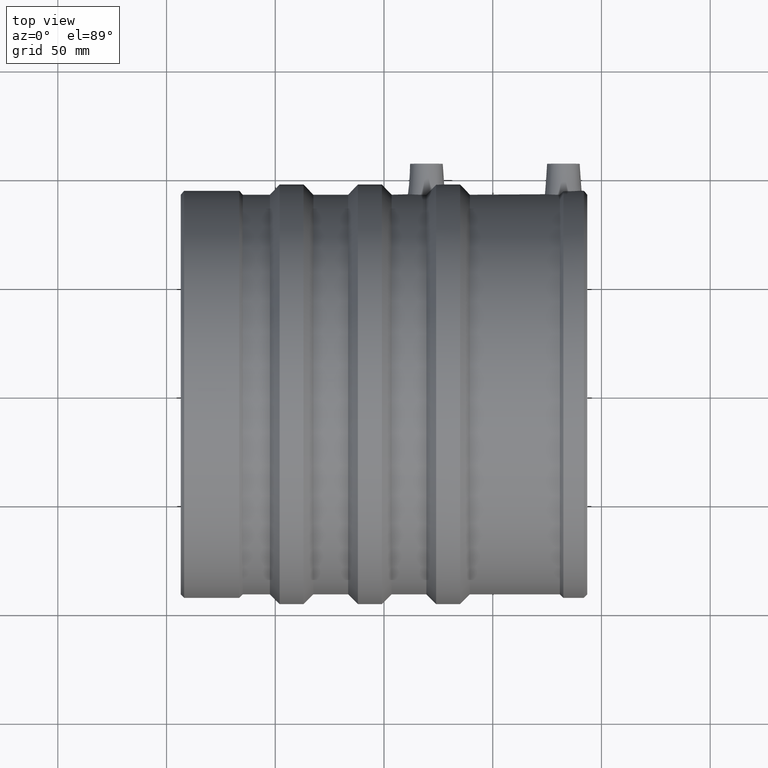
[diagram: clean part render]
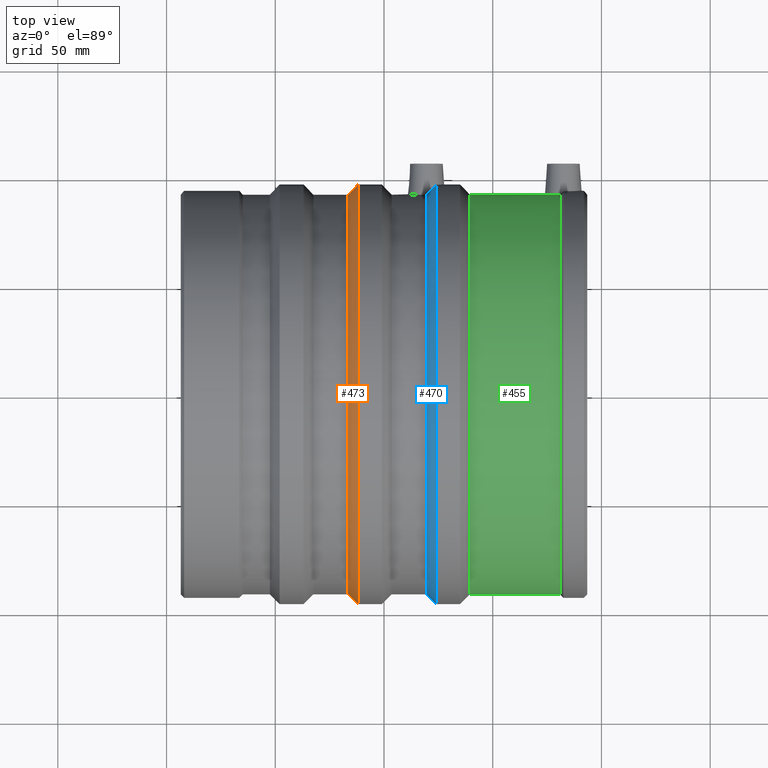
[diagram: same view with three faces highlighted in distinct colors, each labeled with its STEP entity id]
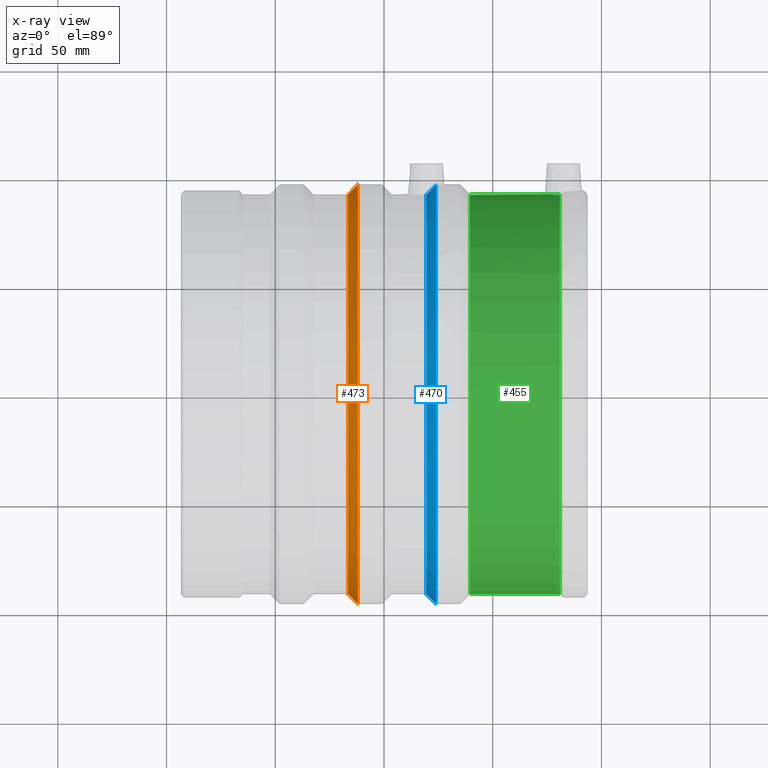
[diagram: x-ray of the same camera — body ghosted, the three highlighted faces saturated]
A machine part, top view with three faces highlighted in distinct colors.
The next image is the same camera in x-ray (body ghosted, the three faces saturated) — at least one of them is partly hidden behind the body in this view.
Their STEP definitions:

[orange] entity #473 — the highlighted conical surface has half-angle 45 deg.
#32=CONICAL_SURFACE('',#545,94.25,45.);
#63=FACE_BOUND('',#188,.T.);
#120=FACE_OUTER_BOUND('',#187,.T.);
#187=EDGE_LOOP('',(#410));
#188=EDGE_LOOP('',(#411));
#237=CIRCLE('',#544,96.5);
#238=CIRCLE('',#546,92.);
#280=VERTEX_POINT('',#912);
#281=VERTEX_POINT('',#915);
#327=EDGE_CURVE('',#280,#280,#237,.T.);
#328=EDGE_CURVE('',#281,#281,#238,.T.);
#410=ORIENTED_EDGE('',*,*,#328,.F.);
#411=ORIENTED_EDGE('',*,*,#327,.T.);
#473=ADVANCED_FACE('',(#120,#63),#32,.T.);
#544=AXIS2_PLACEMENT_3D('',#913,#684,#685);
#545=AXIS2_PLACEMENT_3D('',#914,#686,#687);
#546=AXIS2_PLACEMENT_3D('',#916,#688,#689);
#684=DIRECTION('center_axis',(-1.,-1.83697019872103E-16,0.));
#685=DIRECTION('ref_axis',(0.,0.,1.));
#686=DIRECTION('center_axis',(1.,1.83697019872103E-16,0.));
#687=DIRECTION('ref_axis',(1.80411241501588E-16,-1.,0.));
#688=DIRECTION('center_axis',(-1.,-1.83697019872103E-16,0.));
#689=DIRECTION('ref_axis',(0.,0.,1.));
#912=CARTESIAN_POINT('',(-12.,-96.5,0.));
#913=CARTESIAN_POINT('Origin',(-12.,1.49713071195764E-14,0.));
#914=CARTESIAN_POINT('Origin',(-14.25,1.45579888248642E-14,0.));
#915=CARTESIAN_POINT('',(-16.5,-92.,0.));
#916=CARTESIAN_POINT('Origin',(-16.5,1.41446705301519E-14,0.));

[blue] entity #470 — the highlighted conical surface has half-angle 45 deg.
#19=B_SPLINE_CURVE_WITH_KNOTS('',3,(#816,#817,#818,#819,#820,#821),
 .UNSPECIFIED.,.F.,.F.,(4,2,4),(5.43166500596152,5.7818485806918,6.06549243439266),
 .UNSPECIFIED.);
#21=B_SPLINE_CURVE_WITH_KNOTS('',3,(#838,#839,#840,#841,#842,#843),
 .UNSPECIFIED.,.F.,.F.,(4,2,4),(3.05545677427075,3.33910062797161,3.68928420270189),
 .UNSPECIFIED.);
#30=CONICAL_SURFACE('',#540,94.25,45.);
#117=FACE_OUTER_BOUND('',#182,.T.);
#182=EDGE_LOOP('',(#402,#403,#404,#405));
#221=CIRCLE('',#512,92.);
#235=CIRCLE('',#539,96.5);
#262=VERTEX_POINT('',#814);
#263=VERTEX_POINT('',#815);
#264=VERTEX_POINT('',#822);
#265=VERTEX_POINT('',#837);
#305=EDGE_CURVE('',#262,#263,#19,.T.);
#307=EDGE_CURVE('',#265,#264,#21,.T.);
#311=EDGE_CURVE('',#265,#263,#221,.T.);
#325=EDGE_CURVE('',#264,#262,#235,.T.);
#402=ORIENTED_EDGE('',*,*,#305,.T.);
#403=ORIENTED_EDGE('',*,*,#311,.F.);
#404=ORIENTED_EDGE('',*,*,#307,.T.);
#405=ORIENTED_EDGE('',*,*,#325,.T.);
#470=ADVANCED_FACE('',(#117),#30,.T.);
#512=AXIS2_PLACEMENT_3D('',#867,#620,#621);
#539=AXIS2_PLACEMENT_3D('',#906,#674,#675);
#540=AXIS2_PLACEMENT_3D('',#907,#676,#677);
#620=DIRECTION('center_axis',(-1.,-1.83697019872103E-16,0.));
#621=DIRECTION('ref_axis',(0.,0.,1.));
#674=DIRECTION('center_axis',(-1.,-1.83697019872103E-16,0.));
#675=DIRECTION('ref_axis',(0.,0.,1.));
#676=DIRECTION('center_axis',(1.,1.83697019872103E-16,0.));
#677=DIRECTION('ref_axis',(1.80411241501588E-16,-1.,0.));
#814=CARTESIAN_POINT('',(24.,96.2578169046513,6.83247281375068));
#815=CARTESIAN_POINT('',(19.5,91.6058888617852,8.50653430265593));
#816=CARTESIAN_POINT('Ctrl Pts',(24.,96.2578169046513,6.83247281375069));
#817=CARTESIAN_POINT('Ctrl Pts',(23.2637947271932,95.4807236701833,7.38241857392285));
#818=CARTESIAN_POINT('Ctrl Pts',(22.4446450110516,94.6238380507547,7.80659317074995));
#819=CARTESIAN_POINT('Ctrl Pts',(20.9067150674202,93.0359258596975,8.31954940201068));
#820=CARTESIAN_POINT('Ctrl Pts',(20.1980481905514,92.3115221962195,8.45719161317787));
#821=CARTESIAN_POINT('Ctrl Pts',(19.5,91.6058888617852,8.50653430265593));
#822=CARTESIAN_POINT('',(24.,96.2578169046513,-6.83247281375068));
#837=CARTESIAN_POINT('',(19.5,91.6058888617852,-8.50653430265592));
#838=CARTESIAN_POINT('Ctrl Pts',(19.5,91.6058888617852,-8.50653430265593));
#839=CARTESIAN_POINT('Ctrl Pts',(20.1980481905514,92.3115221962195,-8.45719161317787));
#840=CARTESIAN_POINT('Ctrl Pts',(20.9067150674202,93.0359258596975,-8.31954940201068));
#841=CARTESIAN_POINT('Ctrl Pts',(22.4446450110516,94.6238380507548,-7.80659317074995));
#842=CARTESIAN_POINT('Ctrl Pts',(23.2637947271932,95.4807236701833,-7.38241857392285));
#843=CARTESIAN_POINT('Ctrl Pts',(24.,96.2578169046513,-6.83247281375069));
#867=CARTESIAN_POINT('Origin',(19.5,2.07577632455476E-14,0.));
#906=CARTESIAN_POINT('Origin',(24.,2.15843998349721E-14,0.));
#907=CARTESIAN_POINT('Origin',(21.75,2.11710815402599E-14,0.));

[green] entity #455 — the highlighted cylindrical surface (bore or boss wall) has radius 92 mm, axis along (-1, -0, 0).
#18=B_SPLINE_CURVE_WITH_KNOTS('',3,(#795,#796,#797,#798,#799,#800,#801,
#802,#803,#804,#805,#806,#807,#808,#809,#810,#811,#812),.UNSPECIFIED.,.F.,
 .F.,(4,2,2,2,2,2,2,2,4),(0.157292548093549,0.32022700452743,0.64045400905486,
0.96044201823581,1.28043002741676,1.60041803659771,1.92040604577866,2.24063305030609,
2.40356750673997),.UNSPECIFIED.);
#47=FACE_BOUND('',#154,.T.);
#78=CYLINDRICAL_SURFACE('',#508,92.);
#102=FACE_OUTER_BOUND('',#153,.T.);
#153=EDGE_LOOP('',(#366,#367));
#154=EDGE_LOOP('',(#368));
#219=CIRCLE('',#509,92.);
#220=CIRCLE('',#510,92.);
#259=VERTEX_POINT('',#761);
#261=VERTEX_POINT('',#788);
#266=VERTEX_POINT('',#864);
#304=EDGE_CURVE('',#259,#261,#18,.T.);
#309=EDGE_CURVE('',#261,#259,#219,.T.);
#310=EDGE_CURVE('',#266,#266,#220,.T.);
#366=ORIENTED_EDGE('',*,*,#304,.T.);
#367=ORIENTED_EDGE('',*,*,#309,.T.);
#368=ORIENTED_EDGE('',*,*,#310,.F.);
#455=ADVANCED_FACE('',(#102,#47),#78,.T.);
#508=AXIS2_PLACEMENT_3D('',#862,#612,#613);
#509=AXIS2_PLACEMENT_3D('',#863,#614,#615);
#510=AXIS2_PLACEMENT_3D('',#865,#616,#617);
#612=DIRECTION('center_axis',(-1.,-1.83697019872103E-16,0.));
#613=DIRECTION('ref_axis',(1.80411241501588E-16,-1.,0.));
#614=DIRECTION('center_axis',(-1.,-1.83697019872103E-16,0.));
#615=DIRECTION('ref_axis',(0.,0.,1.));
#616=DIRECTION('center_axis',(-1.,-1.83697019872103E-16,0.));
#617=DIRECTION('ref_axis',(0.,0.,1.));
#761=CARTESIAN_POINT('',(80.9000000001944,91.6200400206948,8.35274006648221));
#788=CARTESIAN_POINT('',(80.9000000001944,91.6200400206948,-8.35274006648221));
#795=CARTESIAN_POINT('Ctrl Pts',(80.9000000001968,91.6200400206314,8.35274006646424));
#796=CARTESIAN_POINT('Ctrl Pts',(80.3416862049481,91.6298844692996,8.24475768298421));
#797=CARTESIAN_POINT('Ctrl Pts',(79.7863021630924,91.644934531185,8.07808221760853));
#798=CARTESIAN_POINT('Ctrl Pts',(78.2088638379404,91.7012399596015,7.42115556044585));
#799=CARTESIAN_POINT('Ctrl Pts',(77.2555725147718,91.7540652510374,6.76501261314006));
#800=CARTESIAN_POINT('Ctrl Pts',(75.7521299576632,91.852989012324,5.25370716272416));
#801=CARTESIAN_POINT('Ctrl Pts',(75.1012531847958,91.9055250173577,4.29785371559446));
#802=CARTESIAN_POINT('Ctrl Pts',(74.2381930489039,91.9795519810588,2.20433493796449));
#803=CARTESIAN_POINT('Ctrl Pts',(74.0260246327909,92.0000000000001,1.06662669726983));
#804=CARTESIAN_POINT('Ctrl Pts',(74.0260246327909,92.0000000000001,-1.06662669726983));
#805=CARTESIAN_POINT('Ctrl Pts',(74.2381930489039,91.9795519810588,-2.20433493796449));
#806=CARTESIAN_POINT('Ctrl Pts',(75.1012531847958,91.9055250173577,-4.29785371559446));
#807=CARTESIAN_POINT('Ctrl Pts',(75.7521299576632,91.852989012324,-5.25370716272415));
#808=CARTESIAN_POINT('Ctrl Pts',(77.2555725147718,91.7540652510374,-6.76501261314005));
#809=CARTESIAN_POINT('Ctrl Pts',(78.2088638379404,91.7012399596015,-7.42115556044585));
#810=CARTESIAN_POINT('Ctrl Pts',(79.7863021630924,91.644934531185,-8.07808221760853));
#811=CARTESIAN_POINT('Ctrl Pts',(80.341686204948,91.6298844692996,-8.24475768298421));
#812=CARTESIAN_POINT('Ctrl Pts',(80.9000000001968,91.6200400206314,-8.35274006646424));
#862=CARTESIAN_POINT('Origin',(60.2,2.82342319543422E-14,0.));
#863=CARTESIAN_POINT('Origin',(80.9,3.20367602656948E-14,0.));
#864=CARTESIAN_POINT('',(39.5,-92.,0.));
#865=CARTESIAN_POINT('Origin',(39.5,2.44317036429897E-14,0.));